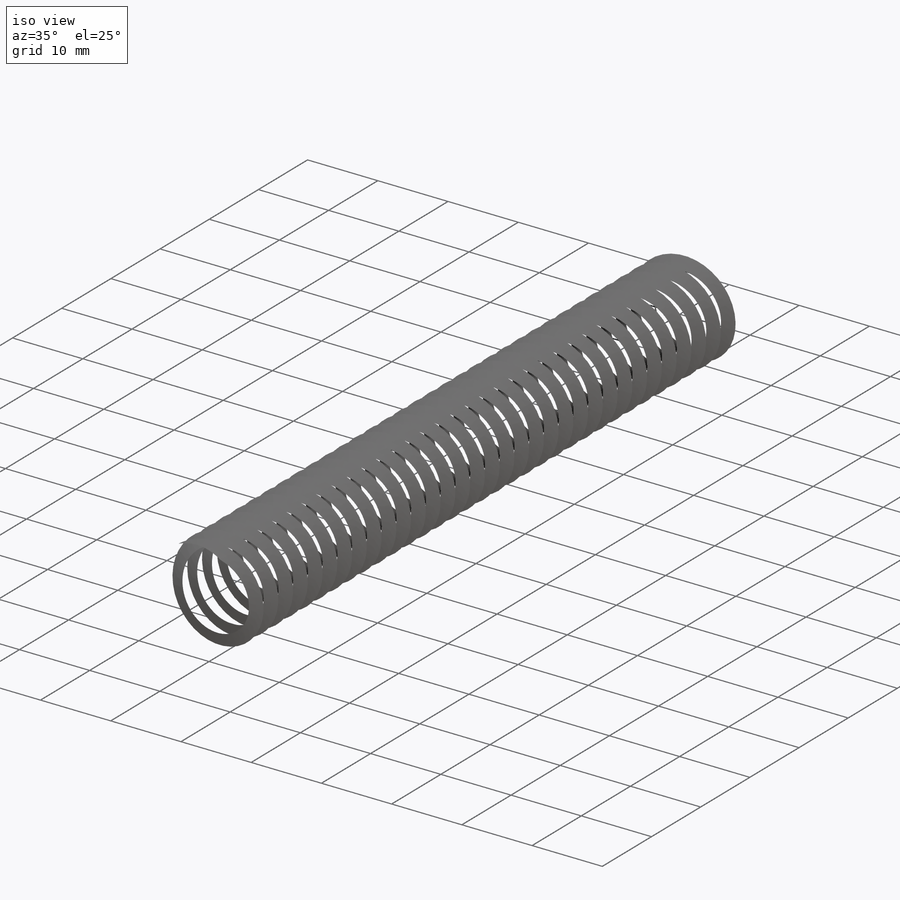
[diagram: iso view]
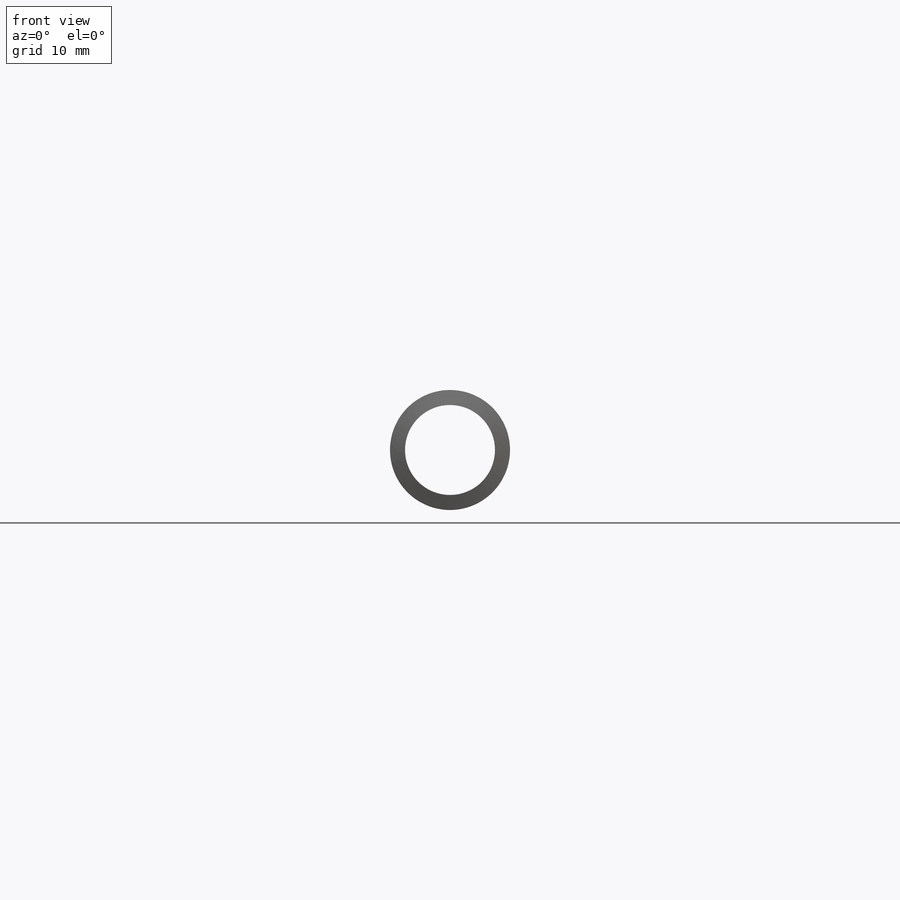
[diagram: front view]
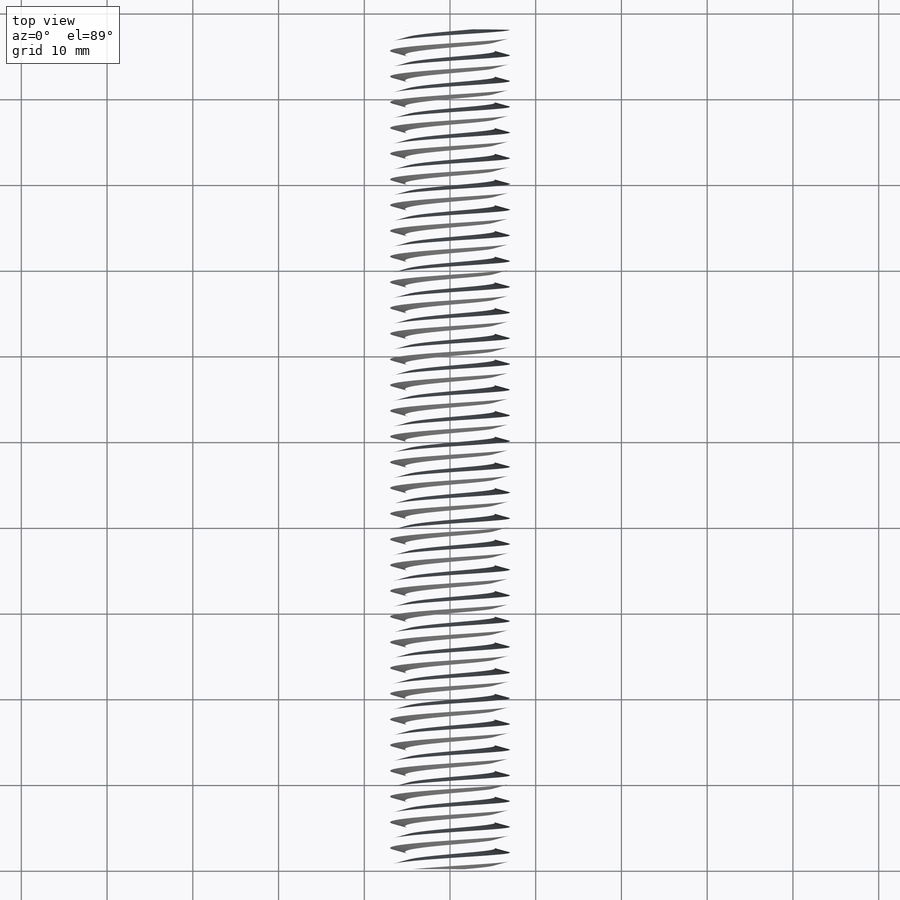
[diagram: top view]
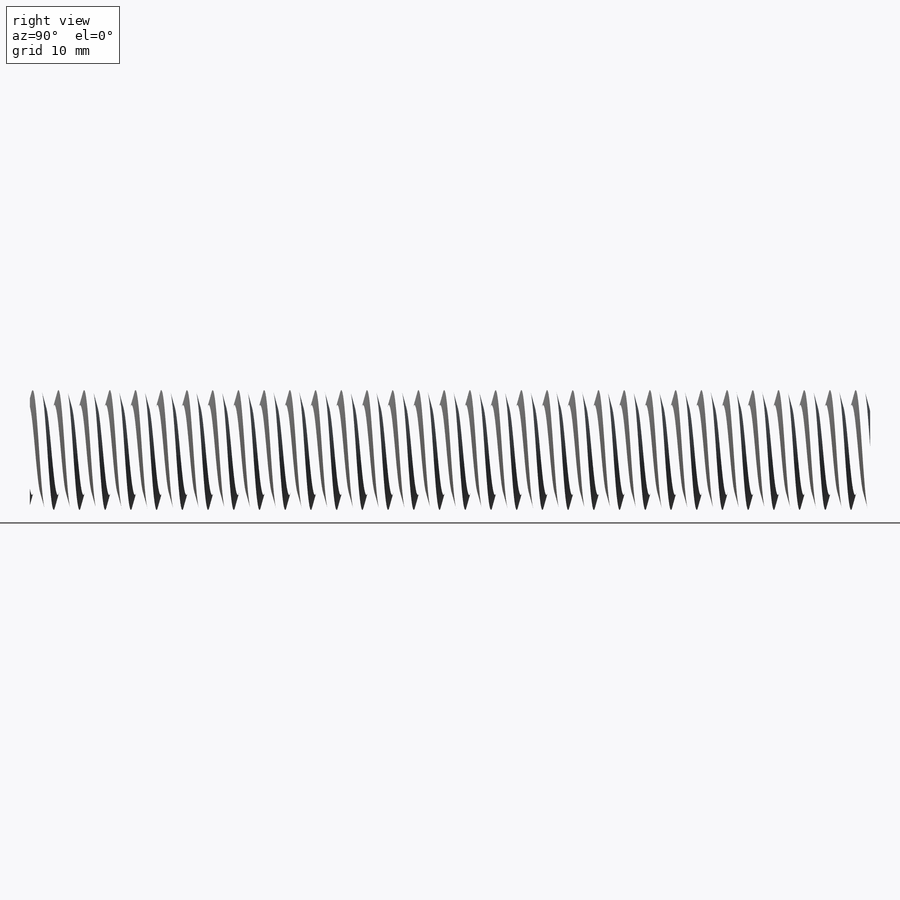
[diagram: right view]
SOLIDWORKS PART (.sldprt)
format: sldprt  version: not decoded by parser v0  size: 1,171,968 bytes
history: native  units: mm
features: sketch x5, plane x3, cut_extrude x2, material x1, helix x1, extrude x1, sweep x1 (+10 scaffold rows collapsed)
feature tree (24):
  scaffold x10  (default folders/planes/origin — collapsed)
  material  "1.0718 (11SMnPb30)"
  plane  "Ebene vorne"
  plane  "Ebene oben"
  plane  "Ebene rechts"
  sketch  "Skizze1"  dims[D1=10.5mm]
  helix  "Spirale/Helix1"  Pitch=100mm
  sketch  "Skizze2"  dims[D1=10.5mm]
  extrude  "Aufsatz-Linear austragen1"  Depth=100mm
  sketch  "Skizze3"  dims[c1.D1=~0.463257mm c2.D1=30.0deg c3.D1=~0.296448mm c4.D1=60.0deg c5.D1=~0.256731mm c6.D1=30.0deg c6.D2=1.75mm c6.D3=5.25mm c6.D4=0.96mm]
  sweep  "Austragung1"
  sketch  "Skizze4"  dims[D1=10.0mm D2=15.0mm]
  cut_extrude  "Schnitt-Linear austragen1"  Depth=12mm
  sketch  "Skizze5"  dims[D1=15.0mm]
  cut_extrude  "Schnitt-Linear austragen2"  Depth=5mm
decode coverage: 9 of 10 modeling features carry decoded parameters
note: ~ marks probable driven/reference dimensions
note: suppression state not decoded; provenance and decode notes live in map.json
